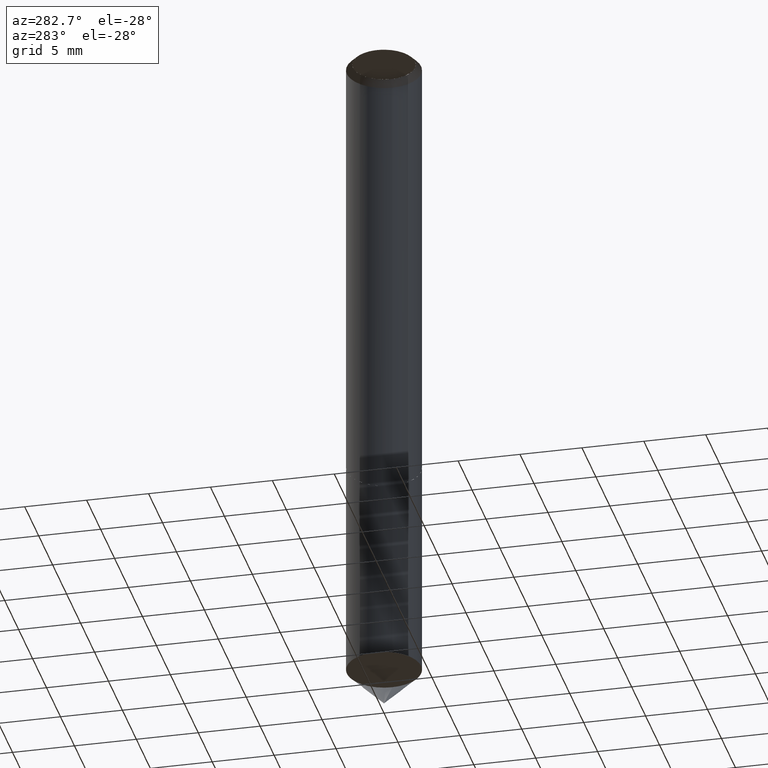
[diagram: clean part render]
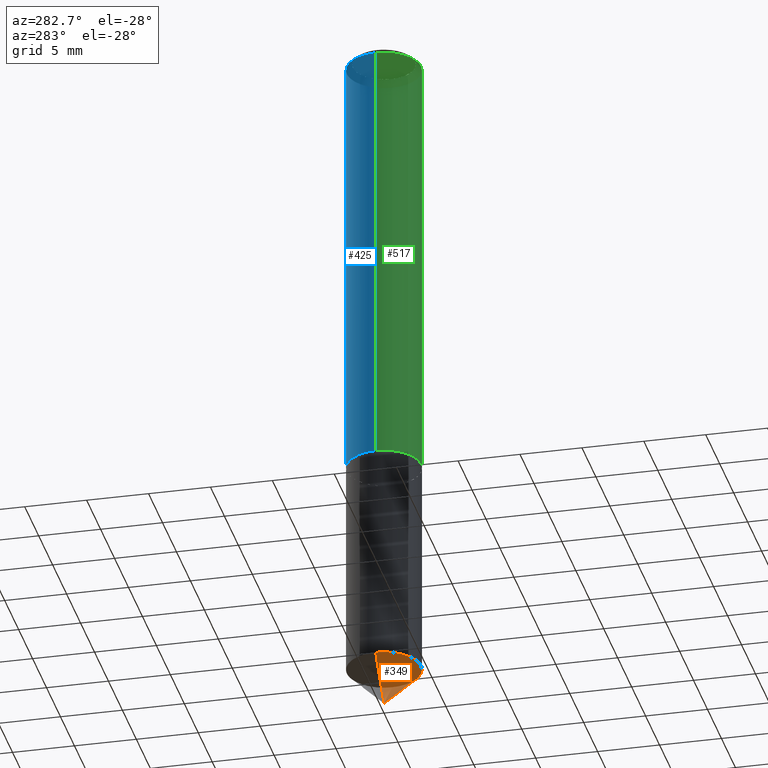
[diagram: same view with three faces highlighted in distinct colors, each labeled with its STEP entity id]
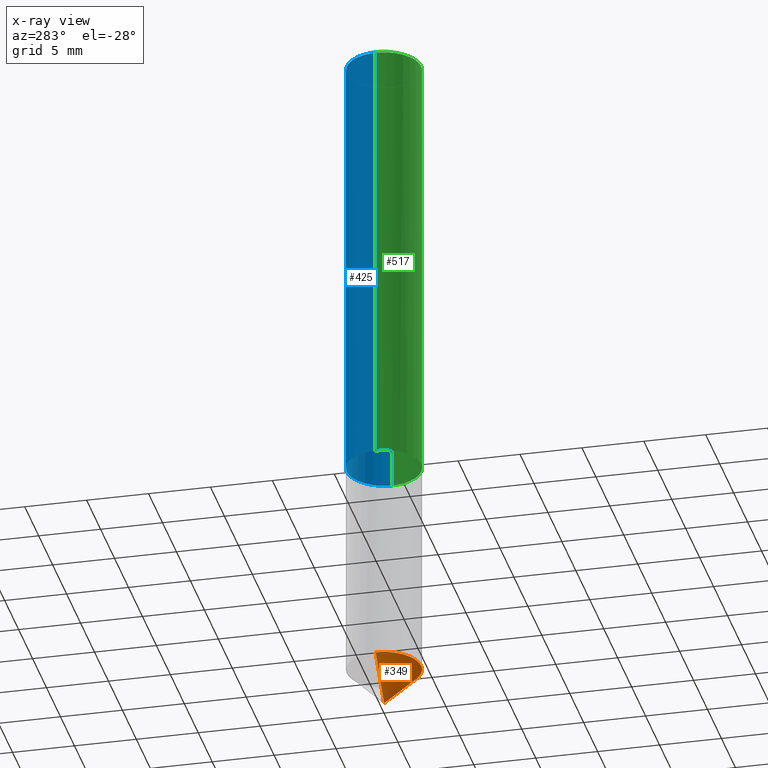
[diagram: x-ray of the same camera — body ghosted, the three highlighted faces saturated]
A machine part, auxiliary view with three faces highlighted in distinct colors.
The next image is the same camera in x-ray (body ghosted, the three faces saturated) — at least one of them is partly hidden behind the body in this view.
Their STEP definitions:

[orange] entity #349 — the highlighted face is a freeform B-spline surface patch.
#260=CARTESIAN_POINT('',(0.0,0.0,-21.0));
#261=CARTESIAN_POINT('',(3.0,0.0,-18.0));
#265=CARTESIAN_POINT('',(-3.0,0.0,-18.0));
#267=CARTESIAN_POINT('',(-3.0,-3.0,-18.0));
#268=CARTESIAN_POINT('',(0.0,-3.0,-18.0));
#269=CARTESIAN_POINT('',(3.0,-3.0,-18.0));
#334=(
BOUNDED_SURFACE()
B_SPLINE_SURFACE(1,2,(
(#260,#260,#260,#260,#260),
(#265,#267,#268,#269,#261)
), .UNSPECIFIED.,.F.,.F.,.F.)
B_SPLINE_SURFACE_WITH_KNOTS((2,2),(3,2,3),(
0.0,1.0),(
0.0,0.5,1.0), .UNSPECIFIED.)
GEOMETRIC_REPRESENTATION_ITEM()
RATIONAL_B_SPLINE_SURFACE(((1.0,0.707106781187,1.0,0.707106781187,1.0),
(1.0,0.707106781187,1.0,0.707106781187,1.0)
))
REPRESENTATION_ITEM('')
SURFACE()
);
#335=(
BOUNDED_CURVE()
B_SPLINE_CURVE(1,(#265,#260),.UNSPECIFIED.,.F.,.F.)
B_SPLINE_CURVE_WITH_KNOTS((2,2),
(0.0,1.0),.UNSPECIFIED.)
CURVE()
GEOMETRIC_REPRESENTATION_ITEM()
RATIONAL_B_SPLINE_CURVE((1.0,1.0))
REPRESENTATION_ITEM('')
);
#336=(
BOUNDED_CURVE()
B_SPLINE_CURVE(1,(#260,#261),.UNSPECIFIED.,.F.,.F.)
B_SPLINE_CURVE_WITH_KNOTS((2,2),
(0.0,1.0),.UNSPECIFIED.)
CURVE()
GEOMETRIC_REPRESENTATION_ITEM()
RATIONAL_B_SPLINE_CURVE((1.0,1.0))
REPRESENTATION_ITEM('')
);
#337=(
BOUNDED_CURVE()
B_SPLINE_CURVE(2,(#261,#269,#268,#267,#265),.UNSPECIFIED.,.F.,.F.)
B_SPLINE_CURVE_WITH_KNOTS((3,2,3),
(0.0,0.5,1.0),.UNSPECIFIED.)
CURVE()
GEOMETRIC_REPRESENTATION_ITEM()
RATIONAL_B_SPLINE_CURVE((1.0,0.707106781187,1.0,0.707106781187,1.0))
REPRESENTATION_ITEM('')
);
#338=VERTEX_POINT('',#260);
#339=VERTEX_POINT('',#261);
#340=VERTEX_POINT('',#265);
#341=EDGE_CURVE('',#340,#338,#335,.T.);
#342=EDGE_CURVE('',#338,#339,#336,.T.);
#343=EDGE_CURVE('',#339,#340,#337,.T.);
#344=ORIENTED_EDGE('',*,*,#341,.T.);
#345=ORIENTED_EDGE('',*,*,#342,.T.);
#346=ORIENTED_EDGE('',*,*,#343,.T.);
#347=EDGE_LOOP('',(#344,#345,#346));
#348=FACE_OUTER_BOUND('',#347,.T.);
#349=ADVANCED_FACE('',(#348),#334,.T.);

[blue] entity #425 — the highlighted face is a freeform B-spline surface patch.
#270=CARTESIAN_POINT('',(3.0,0.0,0.0));
#271=CARTESIAN_POINT('',(3.0,3.0,0.0));
#272=CARTESIAN_POINT('',(0.0,3.0,0.0));
#273=CARTESIAN_POINT('',(-3.0,3.0,0.0));
#274=CARTESIAN_POINT('',(-3.0,0.0,0.0));
#275=CARTESIAN_POINT('',(3.0,0.0,35.5));
#276=CARTESIAN_POINT('',(3.0,3.0,35.5));
#277=CARTESIAN_POINT('',(0.0,3.0,35.5));
#278=CARTESIAN_POINT('',(-3.0,3.0,35.5));
#279=CARTESIAN_POINT('',(-3.0,0.0,35.5));
#406=(
BOUNDED_SURFACE()
B_SPLINE_SURFACE(1,2,(
(#270,#271,#272,#273,#274),
(#275,#276,#277,#278,#279)
), .UNSPECIFIED.,.F.,.F.,.F.)
B_SPLINE_SURFACE_WITH_KNOTS((2,2),(3,2,3),(
0.0,1.0),(
0.0,0.5,1.0), .UNSPECIFIED.)
GEOMETRIC_REPRESENTATION_ITEM()
RATIONAL_B_SPLINE_SURFACE(((1.0,0.707106781187,1.0,0.707106781187,1.0),
(1.0,0.707106781187,1.0,0.707106781187,1.0)
))
REPRESENTATION_ITEM('')
SURFACE()
);
#407=(
BOUNDED_CURVE()
B_SPLINE_CURVE(2,(#275,#276,#277,#278,#279),.UNSPECIFIED.,.F.,.F.)
B_SPLINE_CURVE_WITH_KNOTS((3,2,3),
(0.0,0.5,1.0),.UNSPECIFIED.)
CURVE()
GEOMETRIC_REPRESENTATION_ITEM()
RATIONAL_B_SPLINE_CURVE((1.0,0.707106781187,1.0,0.707106781187,1.0))
REPRESENTATION_ITEM('')
);
#408=(
BOUNDED_CURVE()
B_SPLINE_CURVE(1,(#279,#274),.UNSPECIFIED.,.F.,.F.)
B_SPLINE_CURVE_WITH_KNOTS((2,2),
(0.0,1.0),.UNSPECIFIED.)
CURVE()
GEOMETRIC_REPRESENTATION_ITEM()
RATIONAL_B_SPLINE_CURVE((1.0,1.0))
REPRESENTATION_ITEM('')
);
#409=(
BOUNDED_CURVE()
B_SPLINE_CURVE(2,(#274,#273,#272,#271,#270),.UNSPECIFIED.,.F.,.F.)
B_SPLINE_CURVE_WITH_KNOTS((3,2,3),
(0.0,0.5,1.0),.UNSPECIFIED.)
CURVE()
GEOMETRIC_REPRESENTATION_ITEM()
RATIONAL_B_SPLINE_CURVE((1.0,0.707106781187,1.0,0.707106781187,1.0))
REPRESENTATION_ITEM('')
);
#410=(
BOUNDED_CURVE()
B_SPLINE_CURVE(1,(#270,#275),.UNSPECIFIED.,.F.,.F.)
B_SPLINE_CURVE_WITH_KNOTS((2,2),
(0.0,1.0),.UNSPECIFIED.)
CURVE()
GEOMETRIC_REPRESENTATION_ITEM()
RATIONAL_B_SPLINE_CURVE((1.0,1.0))
REPRESENTATION_ITEM('')
);
#411=VERTEX_POINT('',#270);
#412=VERTEX_POINT('',#274);
#413=VERTEX_POINT('',#275);
#414=VERTEX_POINT('',#279);
#415=EDGE_CURVE('',#413,#414,#407,.T.);
#416=EDGE_CURVE('',#414,#412,#408,.T.);
#417=EDGE_CURVE('',#412,#411,#409,.T.);
#418=EDGE_CURVE('',#411,#413,#410,.T.);
#419=ORIENTED_EDGE('',*,*,#415,.T.);
#420=ORIENTED_EDGE('',*,*,#416,.T.);
#421=ORIENTED_EDGE('',*,*,#417,.T.);
#422=ORIENTED_EDGE('',*,*,#418,.T.);
#423=EDGE_LOOP('',(#419,#420,#421,#422));
#424=FACE_OUTER_BOUND('',#423,.T.);
#425=ADVANCED_FACE('',(#424),#406,.T.);

[green] entity #517 — the highlighted face is a freeform B-spline surface patch.
#270=CARTESIAN_POINT('',(3.0,0.0,0.0));
#274=CARTESIAN_POINT('',(-3.0,0.0,0.0));
#275=CARTESIAN_POINT('',(3.0,0.0,35.5));
#279=CARTESIAN_POINT('',(-3.0,0.0,35.5));
#286=CARTESIAN_POINT('',(-3.0,-3.0,0.0));
#287=CARTESIAN_POINT('',(0.0,-3.0,0.0));
#288=CARTESIAN_POINT('',(3.0,-3.0,0.0));
#289=CARTESIAN_POINT('',(-3.0,-3.0,35.5));
#290=CARTESIAN_POINT('',(0.0,-3.0,35.5));
#291=CARTESIAN_POINT('',(3.0,-3.0,35.5));
#498=(
BOUNDED_SURFACE()
B_SPLINE_SURFACE(1,2,(
(#274,#286,#287,#288,#270),
(#279,#289,#290,#291,#275)
), .UNSPECIFIED.,.F.,.F.,.F.)
B_SPLINE_SURFACE_WITH_KNOTS((2,2),(3,2,3),(
0.0,1.0),(
0.0,0.5,1.0), .UNSPECIFIED.)
GEOMETRIC_REPRESENTATION_ITEM()
RATIONAL_B_SPLINE_SURFACE(((1.0,0.707106781187,1.0,0.707106781187,1.0),
(1.0,0.707106781187,1.0,0.707106781187,1.0)
))
REPRESENTATION_ITEM('')
SURFACE()
);
#499=(
BOUNDED_CURVE()
B_SPLINE_CURVE(1,(#279,#274),.UNSPECIFIED.,.F.,.F.)
B_SPLINE_CURVE_WITH_KNOTS((2,2),
(0.0,1.0),.UNSPECIFIED.)
CURVE()
GEOMETRIC_REPRESENTATION_ITEM()
RATIONAL_B_SPLINE_CURVE((1.0,1.0))
REPRESENTATION_ITEM('')
);
#500=(
BOUNDED_CURVE()
B_SPLINE_CURVE(2,(#274,#286,#287,#288,#270),.UNSPECIFIED.,.F.,.F.)
B_SPLINE_CURVE_WITH_KNOTS((3,2,3),
(0.0,0.5,1.0),.UNSPECIFIED.)
CURVE()
GEOMETRIC_REPRESENTATION_ITEM()
RATIONAL_B_SPLINE_CURVE((1.0,0.707106781187,1.0,0.707106781187,1.0))
REPRESENTATION_ITEM('')
);
#501=(
BOUNDED_CURVE()
B_SPLINE_CURVE(1,(#270,#275),.UNSPECIFIED.,.F.,.F.)
B_SPLINE_CURVE_WITH_KNOTS((2,2),
(0.0,1.0),.UNSPECIFIED.)
CURVE()
GEOMETRIC_REPRESENTATION_ITEM()
RATIONAL_B_SPLINE_CURVE((1.0,1.0))
REPRESENTATION_ITEM('')
);
#502=(
BOUNDED_CURVE()
B_SPLINE_CURVE(2,(#275,#291,#290,#289,#279),.UNSPECIFIED.,.F.,.F.)
B_SPLINE_CURVE_WITH_KNOTS((3,2,3),
(0.0,0.5,1.0),.UNSPECIFIED.)
CURVE()
GEOMETRIC_REPRESENTATION_ITEM()
RATIONAL_B_SPLINE_CURVE((1.0,0.707106781187,1.0,0.707106781187,1.0))
REPRESENTATION_ITEM('')
);
#503=VERTEX_POINT('',#270);
#504=VERTEX_POINT('',#274);
#505=VERTEX_POINT('',#275);
#506=VERTEX_POINT('',#279);
#507=EDGE_CURVE('',#506,#504,#499,.T.);
#508=EDGE_CURVE('',#504,#503,#500,.T.);
#509=EDGE_CURVE('',#503,#505,#501,.T.);
#510=EDGE_CURVE('',#505,#506,#502,.T.);
#511=ORIENTED_EDGE('',*,*,#507,.T.);
#512=ORIENTED_EDGE('',*,*,#508,.T.);
#513=ORIENTED_EDGE('',*,*,#509,.T.);
#514=ORIENTED_EDGE('',*,*,#510,.T.);
#515=EDGE_LOOP('',(#511,#512,#513,#514));
#516=FACE_OUTER_BOUND('',#515,.T.);
#517=ADVANCED_FACE('',(#516),#498,.T.);